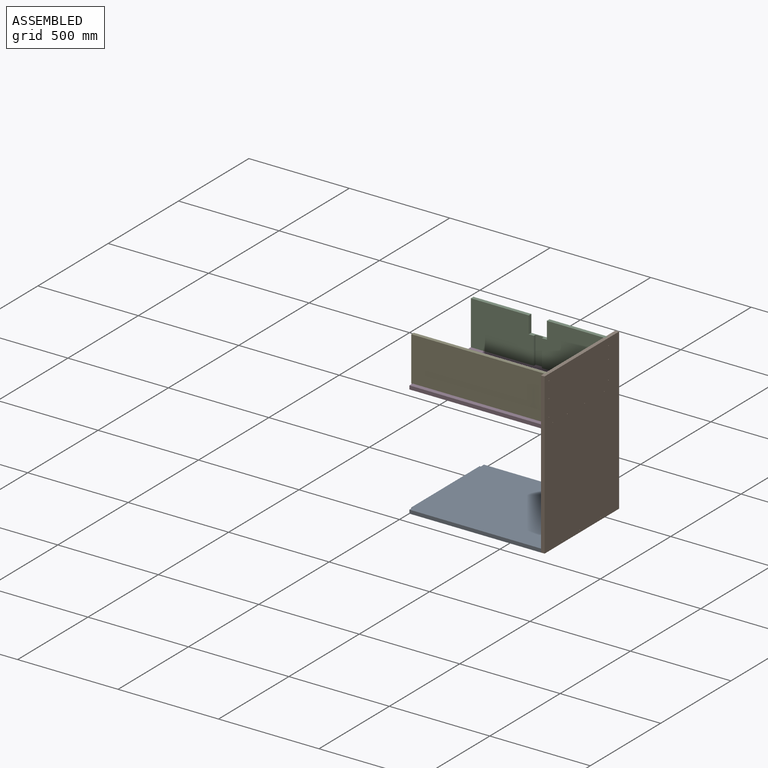
[diagram: assembled view]
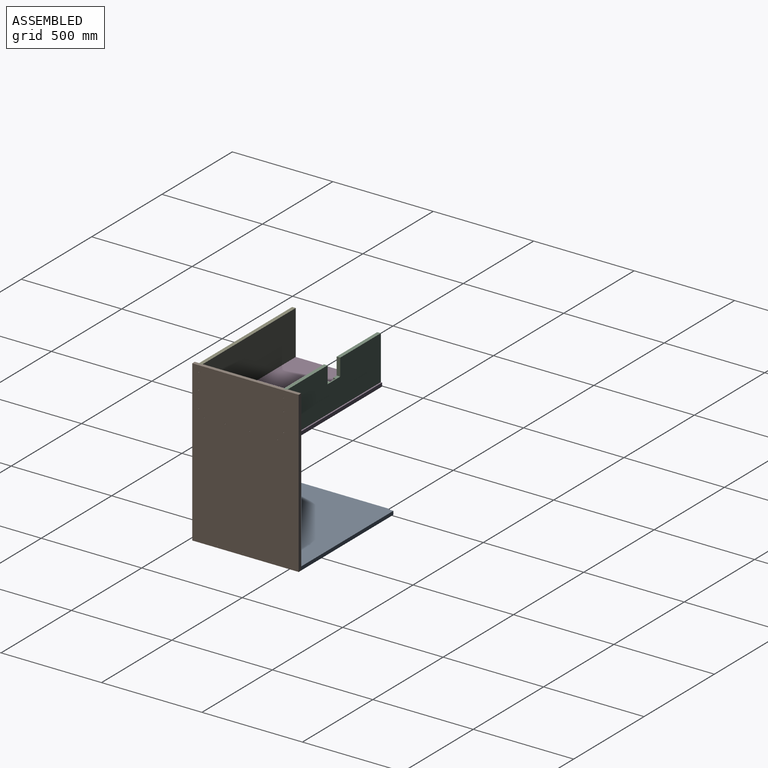
[diagram: assembled view, second angle]
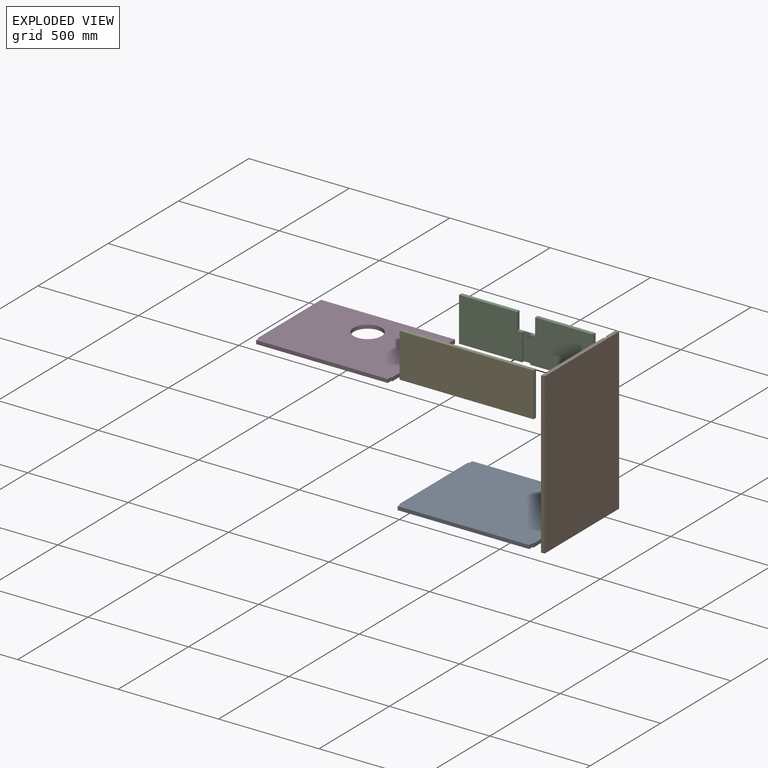
[diagram: exploded view]
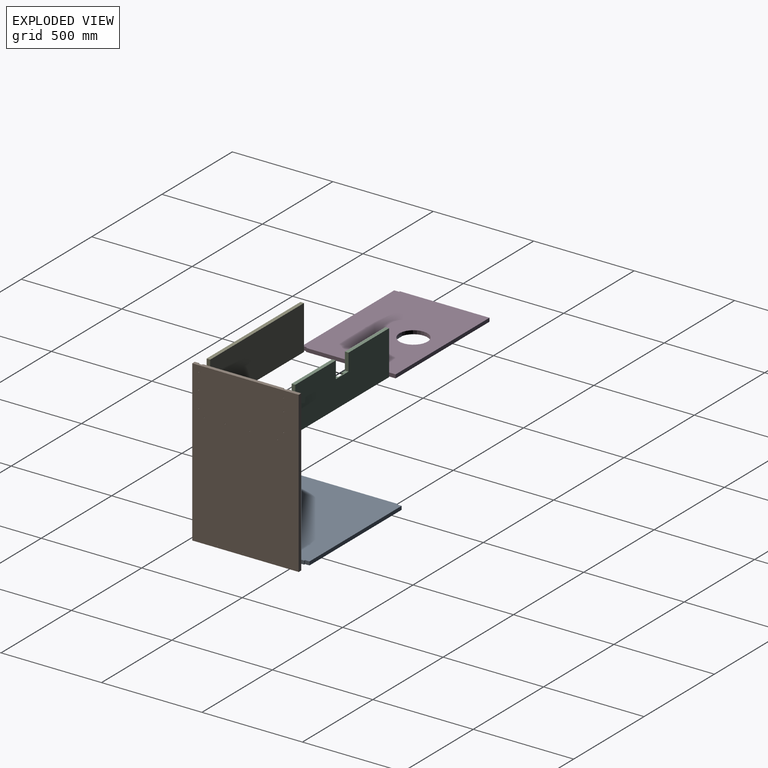
[diagram: exploded view, second angle]
ASSEMBLY  parts=5 mates=4
PART A: 14 faces, bbox 667x18x530 mm
  f0: plane 655x18mm, normal (0,0,-1), area 11790mm2, adj f1,f11,f12,f13
  f1: plane 22x18mm, normal (1,0,0), area 396mm2, adj f0,f2,f12,f13
  f2: plane 18x6mm, normal (0,0,-1), area 108mm2, adj f1,f3,f12,f13
  f3: plane 486x18mm, normal (1,0,0), area 8748mm2, adj f2,f4,f12,f13
  f4: plane 18x6mm, normal (0,0,1), area 108mm2, adj f3,f5,f12,f13
  f5: plane 22x18mm, normal (1,0,0), area 396mm2, adj f4,f6,f12,f13
  f6: plane 655x18mm, normal (0,0,1), area 11790mm2, adj f5,f7,f12,f13
  f7: plane 22x18mm, normal (-1,0,0), area 396mm2, adj f6,f8,f12,f13
  f8: plane 18x6mm, normal (0,0,1), area 108mm2, adj f7,f9,f12,f13
  f9: plane 486x18mm, normal (-1,0,0), area 8748mm2, adj f8,f10,f12,f13
  f10: plane 18x6mm, normal (0,0,-1), area 108mm2, adj f9,f11,f12,f13
  f11: plane 22x18mm, normal (-1,0,0), area 396mm2, adj f0,f10,f12,f13
  f12: plane 667x530mm, normal (0,-1,0), area 352982mm2, adj f0,f1,f2,f3,f4,f5,f6,f7
  f13: plane 667x530mm, normal (0,1,0), area 352982mm2, adj f0,f1,f2,f3,f4,f5,f6,f7
PART B: 34 faces, bbox 530x18x797 mm
  f0: plane 460x238.2mm, normal (0,-1,0), area 16254.3mm2, adj f2,f5,f6,f7,f8,f9,f10,f11
  f1: plane 490x12mm, normal (0,-1,0), area 5842.3mm2, adj f14,f15,f16,f24,f25,f26,f32
  f2: plane 530x18mm, normal (0,0,1), area 9321.6mm2, adj f0,f3,f17,f19,f20,f22,f23,f27
  f3: plane 797x18mm, normal (-1,0,0), area 14346mm2, adj f2,f4,f19,f33
  f4: plane 530x18mm, normal (0,0,-1), area 9540mm2, adj f3,f17,f19,f33
  f5: cylinder r=2mm len=12mm, axis (0,-1,0), area 150.8mm2, adj f0,f19
  f6: cylinder r=2mm len=12mm, axis (0,-1,0), area 150.8mm2, adj f0,f19
  f7: cylinder r=2mm len=12mm, axis (0,-1,0), area 150.8mm2, adj f0,f19
  f8: cylinder r=2mm len=12mm, axis (0,-1,0), area 150.8mm2, adj f0,f19
  f9: cylinder r=2mm len=12mm, axis (0,-1,0), area 150.8mm2, adj f0,f19
  f10: cylinder r=2mm len=12mm, axis (0,-1,0), area 150.8mm2, adj f0,f19
  f11: cylinder r=2mm len=12mm, axis (0,-1,0), area 150.8mm2, adj f0,f19
  f12: cylinder r=2mm len=12mm, axis (0,-1,0), area 150.8mm2, adj f0,f19
  f13: cylinder r=2mm len=12mm, axis (0,-1,0), area 150.8mm2, adj f0,f19
  f14: cylinder r=2mm len=12mm, axis (0,-1,0), area 150.8mm2, adj f1,f19
  f15: cylinder r=2mm len=12mm, axis (0,-1,0), area 150.8mm2, adj f1,f19
  f16: cylinder r=2mm len=12mm, axis (0,-1,0), area 150.8mm2, adj f1,f19
  f17: plane 797x18mm, normal (1,0,0), area 14346mm2, adj f2,f4,f19,f33
  f18: cylinder r=2mm len=12mm, axis (0,-1,0), area 150.8mm2, adj f0,f19
  f19: plane 797x530mm, normal (0,1,0), area 422246.6mm2, adj f2,f3,f4,f5,f6,f7,f8,f9
  f20: plane 220x6mm, normal (-1,0,0), area 1320mm2, adj f0,f2,f21,f23
  f21: plane 405x6mm, normal (0,0,-1), area 2430mm2, adj f0,f20,f22,f23
  f22: plane 220x6mm, normal (1,0,0), area 1320mm2, adj f0,f2,f21,f23
  f23: plane 405x220mm, normal (0,-1,0), area 89100mm2, adj f2,f20,f21,f22
  f24: plane 490x6mm, normal (0,0,1), area 2940mm2, adj f1,f25,f32,f33
  f25: plane 12x6mm, normal (1,0,0), area 72mm2, adj f1,f24,f26,f33
  f26: plane 490x6mm, normal (0,0,-1), area 2940mm2, adj f1,f25,f32,f33
  f27: plane 238.2x6mm, normal (-1,0,0), area 1429.2mm2, adj f0,f2,f28,f33
  f28: plane 460x6mm, normal (0,0,1), area 2760mm2, adj f0,f27,f29,f33
  f29: plane 18.2x6mm, normal (1,0,0), area 109.2mm2, adj f0,f28,f30,f33
  f30: plane 18.6x6mm, normal (0,0,-1), area 111.6mm2, adj f0,f29,f31,f33
  f31: plane 220x6mm, normal (1,0,0), area 1320mm2, adj f0,f2,f30,f33
  f32: plane 12x6mm, normal (-1,0,0), area 72mm2, adj f1,f24,f26,f33
  f33: plane 797x530mm, normal (0,-1,0), area 311050mm2, adj f2,f3,f4,f17,f24,f25,f26,f27
PART C: 14 faces, bbox 667x18x220 mm
  f0: plane 90x18mm, normal (0,0,1), area 1100mm2, adj f1,f5,f6,f7,f8,f11,f12,f13
  f1: plane 85x18mm, normal (1,0,0), area 1530mm2, adj f0,f2,f6,f7
  f2: plane 288.5x18mm, normal (0,0,1), area 5193mm2, adj f1,f3,f6,f7
  f3: plane 220x18mm, normal (-1,0,0), area 3960mm2, adj f2,f4,f6,f7
  f4: plane 667x18mm, normal (0,0,-1), area 11486mm2, adj f3,f5,f6,f7,f8,f9,f12,f13
  f5: plane 135x13mm, normal (1,0,0), area 1755mm2, adj f0,f4,f6,f13
  f6: plane 313.5x220mm, normal (0,-1,0), area 66845mm2, adj f0,f1,f2,f3,f4,f5
  f7: plane 667x220mm, normal (0,1,0), area 139090mm2, adj f0,f1,f2,f3,f4,f9,f10,f11
  f8: plane 135x13mm, normal (-1,0,0), area 1755mm2, adj f0,f4,f12,f13
  f9: plane 220x18mm, normal (1,0,0), area 3960mm2, adj f4,f7,f10,f12
  f10: plane 288.5x18mm, normal (0,0,1), area 5193mm2, adj f7,f9,f11,f12
  f11: plane 85x18mm, normal (-1,0,0), area 1530mm2, adj f0,f7,f10,f12
  f12: plane 313.5x220mm, normal (0,-1,0), area 66845mm2, adj f0,f4,f8,f9,f10,f11
  f13: plane 135x40mm, normal (0,-1,0), area 5400mm2, adj f0,f4,f5,f8
PART D: 11 faces, bbox 667x18x470 mm
  f0: plane 667x18mm, normal (0,0,1), area 12006mm2, adj f1,f8,f9,f10
  f1: plane 446x18mm, normal (-1,0,0), area 8028mm2, adj f0,f2,f9,f10
  f2: plane 18x6mm, normal (0,0,-1), area 108mm2, adj f1,f3,f9,f10
  f3: plane 24x18mm, normal (-1,0,0), area 432mm2, adj f2,f4,f9,f10
  f4: plane 655x18mm, normal (0,0,-1), area 11790mm2, adj f3,f5,f9,f10
  f5: plane 24x18mm, normal (1,0,0), area 432mm2, adj f4,f6,f9,f10
  f6: plane 18x6mm, normal (0,0,-1), area 108mm2, adj f5,f8,f9,f10
  f7: cylinder r=70mm len=140mm, axis (0,1,0), area 7916.8mm2, adj f9,f10
  f8: plane 446x18mm, normal (1,0,0), area 8028mm2, adj f0,f6,f9,f10
  f9: plane 667x470mm, normal (0,-1,0), area 297808.2mm2, adj f0,f1,f2,f3,f4,f5,f6,f7
  f10: plane 667x470mm, normal (0,1,0), area 297808.2mm2, adj f0,f1,f2,f3,f4,f5,f6,f7
PART E: 6 faces, bbox 667x18x220 mm
  f0: plane 220x18mm, normal (1,0,0), area 3960mm2, adj f1,f3,f4,f5
  f1: plane 667x18mm, normal (0,0,1), area 12006mm2, adj f0,f2,f4,f5
  f2: plane 220x18mm, normal (-1,0,0), area 3960mm2, adj f1,f3,f4,f5
  f3: plane 667x18mm, normal (0,0,-1), area 12006mm2, adj f0,f2,f4,f5
  f4: plane 667x220mm, normal (0,-1,0), area 146740mm2, adj f0,f1,f2,f3
  f5: plane 667x220mm, normal (0,1,0), area 146740mm2, adj f0,f1,f2,f3
PLACE A rot(axis=(-1,0,0),90deg) t=(1176.21,-260.99,289.49)mm
PLACE B rot(axis=(0,0,-1),90deg) t=(-816.22,-747.76,683.34)mm
PLACE C t=(144.17,-498.25,216.19)mm
PLACE D rot(axis=(-1,0,0),90deg) t=(-158.89,-685.08,848.29)mm
PLACE E t=(144.17,-921.65,573.06)mm
MATE fastened E.f0 <-> B.f0  axis (1,0,0) through (-816.22,-939.65,1086.49)mm
MATE fastened D.f8 <-> B.f0  axis (1,0,0) through (-816.22,-937.65,848.29)mm
MATE fastened B.f0 <-> C.f9  axis (-1,0,0) through (-816.22,-498.25,1086.49)mm
MATE fastened B.f33 <-> A.f1  axis (-1,0,0) through (-822.22,-961.65,289.49)mm
